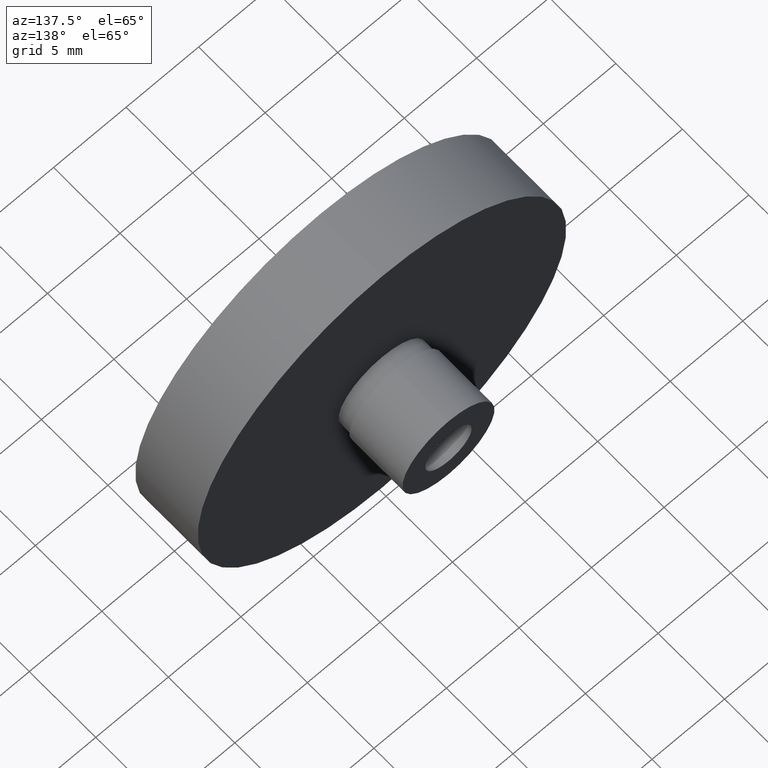
[diagram: clean part render]
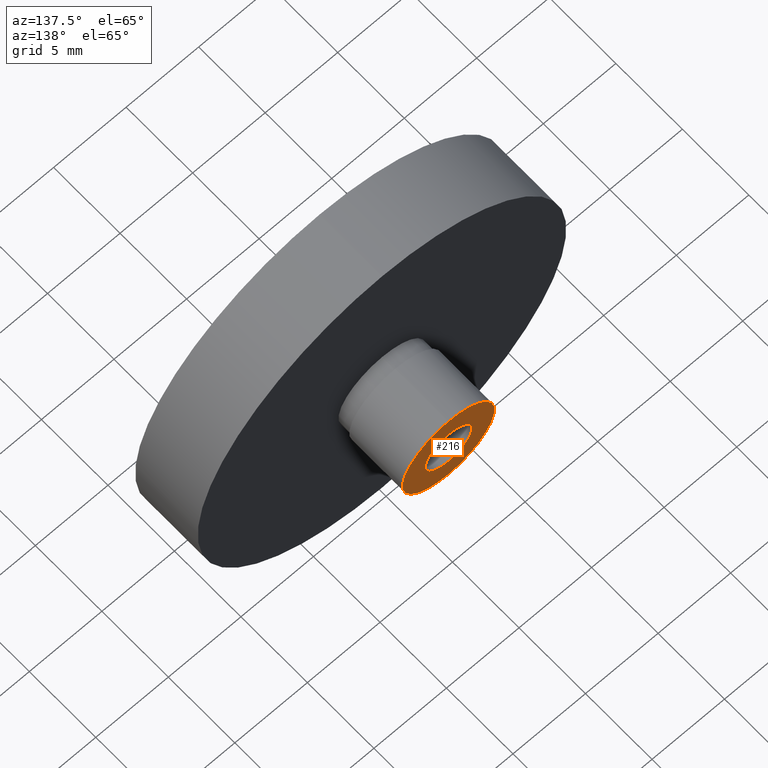
[diagram: same view with one face highlighted and labeled with its STEP entity id]
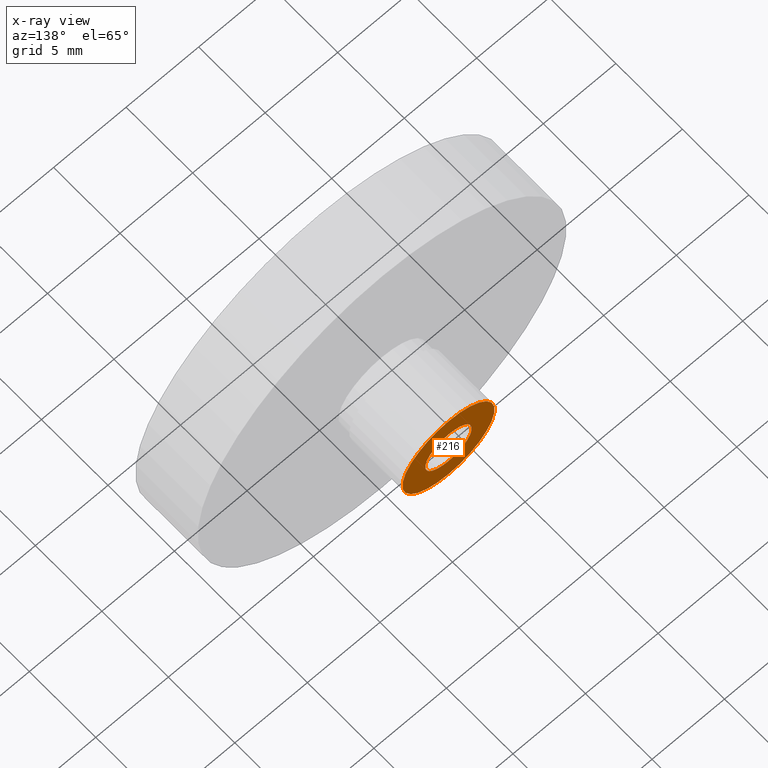
[diagram: x-ray of the same camera — body ghosted, the highlighted face saturated]
A machine part, auxiliary view. The second image highlights one B-rep face of the part: STEP entity #216.
The next image is the same camera in x-ray: the body ghosted, the highlighted face saturated — about 0% of this face is hidden behind the body in this view.
In plain terms, the highlighted planar face has unit normal (0, -1, 0).
Its self-contained STEP definition (entity closure, byte-faithful):
#9 = VERTEX_POINT ( 'NONE', #59 ) ;
#11 = DIRECTION ( 'NONE',  ( 0.0000000000000000000, -1.000000000000000000, 0.0000000000000000000 ) ) ;
#35 = DIRECTION ( 'NONE',  ( -0.0000000000000000000, 1.000000000000000000, -0.0000000000000000000 ) ) ;
#37 = PLANE ( 'NONE',  #379 ) ;
#43 = CIRCLE ( 'NONE', #53, 1.600000000000000100 ) ;
#46 = VERTEX_POINT ( 'NONE', #322 ) ;
#53 = AXIS2_PLACEMENT_3D ( 'NONE', #311, #172, #239 ) ;
#59 = CARTESIAN_POINT ( 'NONE',  ( 1.959434878635765200E-016, 9.700000000000001100, 1.600000000000000100 ) ) ;
#81 = AXIS2_PLACEMENT_3D ( 'NONE', #309, #219, #86 ) ;
#86 = DIRECTION ( 'NONE',  ( 0.0000000000000000000, 0.0000000000000000000, -1.000000000000000000 ) ) ;
#90 = EDGE_CURVE ( 'NONE', #267, #193, #380, .T. ) ;
#102 = CIRCLE ( 'NONE', #81, 1.600000000000000100 ) ;
#112 = ORIENTED_EDGE ( 'NONE', *, *, #90, .T. ) ;
#120 = AXIS2_PLACEMENT_3D ( 'NONE', #295, #35, #387 ) ;
#135 = CARTESIAN_POINT ( 'NONE',  ( 0.0000000000000000000, 9.700000000000001100, 3.175000000000004300 ) ) ;
#143 = AXIS2_PLACEMENT_3D ( 'NONE', #204, #235, #381 ) ;
#153 = EDGE_CURVE ( 'NONE', #193, #267, #185, .T. ) ;
#159 = EDGE_LOOP ( 'NONE', ( #339, #169 ) ) ;
#169 = ORIENTED_EDGE ( 'NONE', *, *, #392, .T. ) ;
#172 = DIRECTION ( 'NONE',  ( 0.0000000000000000000, -1.000000000000000000, 0.0000000000000000000 ) ) ;
#185 = CIRCLE ( 'NONE', #143, 3.175000000000004300 ) ;
#193 = VERTEX_POINT ( 'NONE', #135 ) ;
#204 = CARTESIAN_POINT ( 'NONE',  ( 0.0000000000000000000, 9.700000000000001100, 0.0000000000000000000 ) ) ;
#216 = ADVANCED_FACE ( 'NONE', ( #396, #315 ), #37, .F. ) ;
#219 = DIRECTION ( 'NONE',  ( 0.0000000000000000000, -1.000000000000000000, 0.0000000000000000000 ) ) ;
#235 = DIRECTION ( 'NONE',  ( -0.0000000000000000000, 1.000000000000000000, -0.0000000000000000000 ) ) ;
#238 = DIRECTION ( 'NONE',  ( 0.0000000000000000000, -0.0000000000000000000, -1.000000000000000000 ) ) ;
#239 = DIRECTION ( 'NONE',  ( 0.0000000000000000000, 0.0000000000000000000, -1.000000000000000000 ) ) ;
#243 = CARTESIAN_POINT ( 'NONE',  ( 3.888253587292851500E-016, 9.700000000000001100, -3.175000000000004300 ) ) ;
#267 = VERTEX_POINT ( 'NONE', #243 ) ;
#295 = CARTESIAN_POINT ( 'NONE',  ( 0.0000000000000000000, 9.700000000000001100, 0.0000000000000000000 ) ) ;
#309 = CARTESIAN_POINT ( 'NONE',  ( 0.0000000000000000000, 9.700000000000001100, 0.0000000000000000000 ) ) ;
#311 = CARTESIAN_POINT ( 'NONE',  ( 0.0000000000000000000, 9.700000000000001100, 0.0000000000000000000 ) ) ;
#315 = FACE_OUTER_BOUND ( 'NONE', #369, .T. ) ;
#322 = CARTESIAN_POINT ( 'NONE',  ( 0.0000000000000000000, 9.700000000000001100, -1.600000000000000100 ) ) ;
#339 = ORIENTED_EDGE ( 'NONE', *, *, #367, .T. ) ;
#367 = EDGE_CURVE ( 'NONE', #46, #9, #102, .T. ) ;
#369 = EDGE_LOOP ( 'NONE', ( #406, #112 ) ) ;
#379 = AXIS2_PLACEMENT_3D ( 'NONE', #393, #11, #238 ) ;
#380 = CIRCLE ( 'NONE', #120, 3.175000000000004300 ) ;
#381 = DIRECTION ( 'NONE',  ( 0.0000000000000000000, 0.0000000000000000000, 1.000000000000000000 ) ) ;
#387 = DIRECTION ( 'NONE',  ( 0.0000000000000000000, 0.0000000000000000000, 1.000000000000000000 ) ) ;
#392 = EDGE_CURVE ( 'NONE', #9, #46, #43, .T. ) ;
#393 = CARTESIAN_POINT ( 'NONE',  ( 3.175000000000004300, 9.699999999999999300, 0.0000000000000000000 ) ) ;
#396 = FACE_BOUND ( 'NONE', #159, .T. ) ;
#406 = ORIENTED_EDGE ( 'NONE', *, *, #153, .T. ) ;